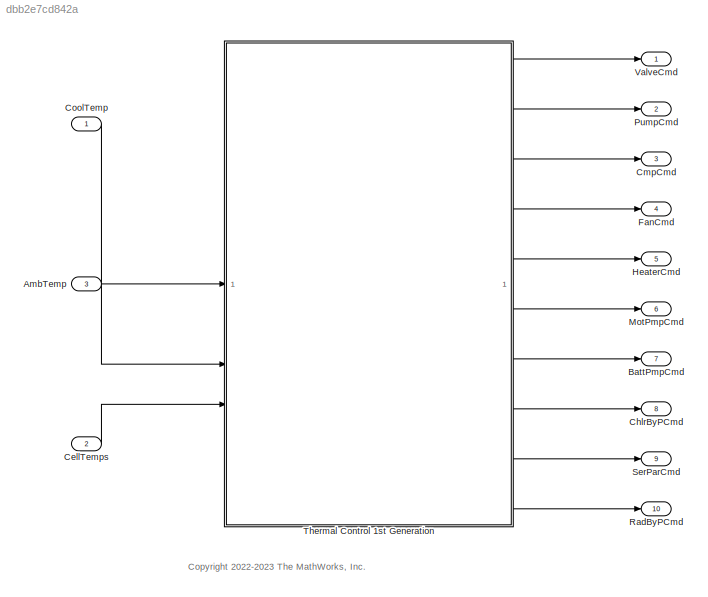
MODEL slx_dbb2e7cd842a
KIND model
CONFIG AbsTol = auto
CONFIG EnableMultiTasking = off
CONFIG FixedStep = 0.1
CONFIG MaxStep = auto
CONFIG MinStep = auto
CONFIG RelTol = 1e-3
CONFIG SampleTimeConstraint = Unconstrained
CONFIG SolverName = FixedStepDiscrete
CONFIG StartTime = 0.0
CONFIG StopTime = 10000
BLOCK [Inport] AmbTemp
  Port = 3
  Unit = K
BLOCK [Outport] BattPmpCmd
  Port = 7
BLOCK [Inport] CellTemps
  Port = 2
  PortDimensions = PlntBattNumCellSer
BLOCK [Outport] ChlrByPCmd
  Port = 8
BLOCK [Outport] CmpCmd
  Port = 3
BLOCK [Inport] CoolTemp
  Unit = K
BLOCK [Outport] FanCmd
  Port = 4
BLOCK [Outport] HeaterCmd
  Port = 5
BLOCK [Outport] MotPmpCmd
  Port = 6
BLOCK [Outport] PumpCmd
  Port = 2
BLOCK [Outport] RadByPCmd
  Port = 10
BLOCK [Outport] SerParCmd
  Port = 9
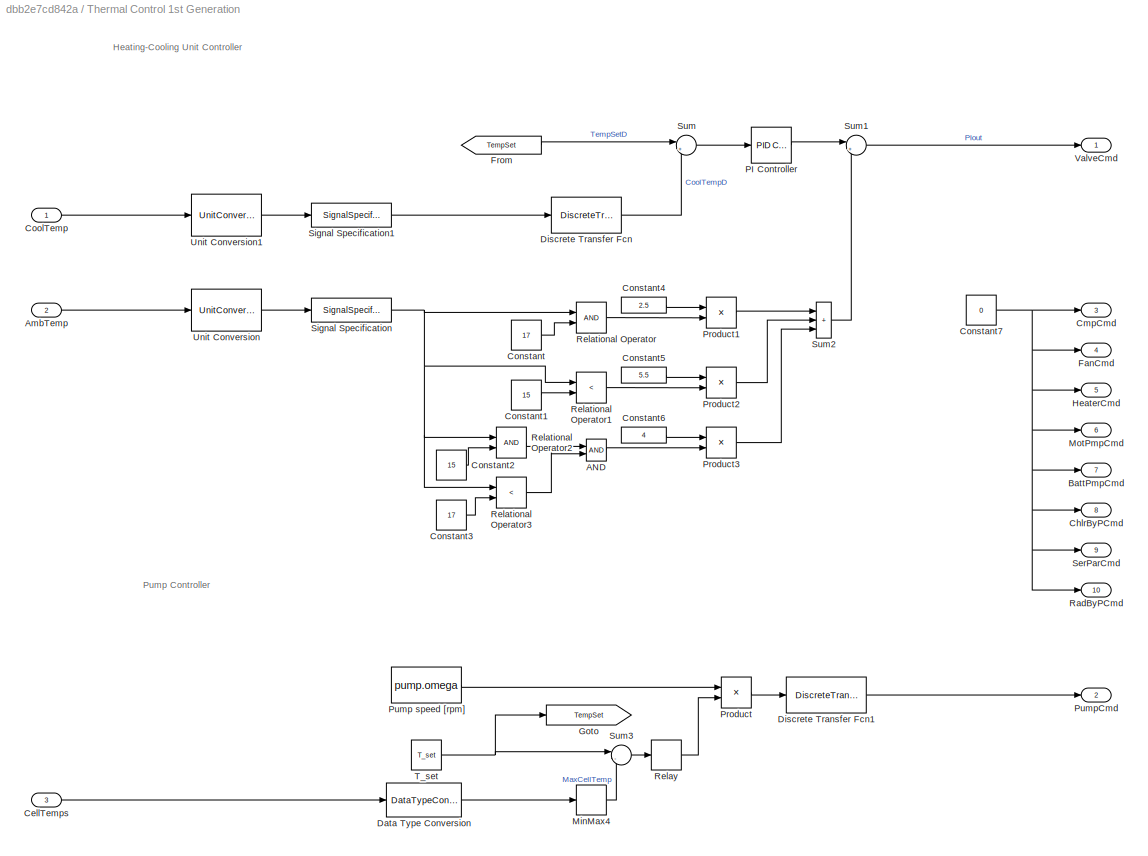
BLOCK [SubSystem] Thermal Control 1st Generation
  VariantControl = Thermal Control 1st Gen
BLOCK [Logic] Thermal Control 1st Generation/AND
  AllPortsSameDT = off
  IconShape = distinctive
  OutDataTypeStr = boolean
BLOCK [Inport] Thermal Control 1st Generation/AmbTemp
  Port = 2
BLOCK [Outport] Thermal Control 1st Generation/BattPmpCmd
  Port = 7
BLOCK [Inport] Thermal Control 1st Generation/CellTemps
  Port = 3
BLOCK [Outport] Thermal Control 1st Generation/ChlrByPCmd
  Port = 8
BLOCK [Outport] Thermal Control 1st Generation/CmpCmd
  Port = 3
BLOCK [Constant] Thermal Control 1st Generation/Constant
  SampleTime = -1
  Value = 17
BLOCK [Constant] Thermal Control 1st Generation/Constant1
  SampleTime = -1
  Value = 15
BLOCK [Constant] Thermal Control 1st Generation/Constant2
  SampleTime = -1
  Value = 15
BLOCK [Constant] Thermal Control 1st Generation/Constant3
  SampleTime = -1
  Value = 17
BLOCK [Constant] Thermal Control 1st Generation/Constant4
  SampleTime = -1
  Value = 2.5
BLOCK [Constant] Thermal Control 1st Generation/Constant5
  SampleTime = -1
  Value = 5.5
BLOCK [Constant] Thermal Control 1st Generation/Constant6
  SampleTime = -1
  Value = 4
BLOCK [Constant] Thermal Control 1st Generation/Constant7
  SampleTime = 0.1
  Value = 0
BLOCK [Inport] Thermal Control 1st Generation/CoolTemp
BLOCK [DataTypeConversion] Thermal Control 1st Generation/Data Type Conversion
  OutDataTypeStr = single
  RndMeth = Floor
  SaturateOnIntegerOverflow = off
BLOCK [DiscreteTransferFcn] Thermal Control 1st Generation/Discrete Transfer Fcn
  Denominator = [1 -0.9048]
  InitialStates = T_set
  InputPortMap = u0
  Numerator = [0.09516]
BLOCK [DiscreteTransferFcn] Thermal Control 1st Generation/Discrete Transfer Fcn1
  Denominator = [1 -0.9512]
  InputPortMap = u0
  Numerator = [0.04877]
BLOCK [Outport] Thermal Control 1st Generation/FanCmd
  Port = 4
BLOCK [From] Thermal Control 1st Generation/From
  GotoTag = TempSet
BLOCK [Goto] Thermal Control 1st Generation/Goto
  GotoTag = TempSet
BLOCK [Outport] Thermal Control 1st Generation/HeaterCmd
  Port = 5
BLOCK [MinMax] Thermal Control 1st Generation/MinMax4
  Function = max
BLOCK [Outport] Thermal Control 1st Generation/MotPmpCmd
  Port = 6
BLOCK [Reference] Thermal Control 1st Generation/PI Controller  REF=slpidlib/PID Controller
  LibrarySourceBlock = simulink/Discrete/Discrete PID Controller
  SourceBlock = slpidlib/PID Controller
  SourceType = PID 1dof
BLOCK [Product] Thermal Control 1st Generation/Product
BLOCK [Product] Thermal Control 1st Generation/Product1
BLOCK [Product] Thermal Control 1st Generation/Product2
BLOCK [Product] Thermal Control 1st Generation/Product3
BLOCK [Constant] Thermal Control 1st Generation/Pump speed [rpm]
  SampleTime = -1
  Value = pump.omega
BLOCK [Outport] Thermal Control 1st Generation/PumpCmd
  Port = 2
BLOCK [Outport] Thermal Control 1st Generation/RadByPCmd
  Port = 10
BLOCK [RelationalOperator] Thermal Control 1st Generation/Relational Operator
  InputSameDT = off
  OutDataTypeStr = boolean
  RndMeth = Simplest
BLOCK [RelationalOperator] Thermal Control 1st Generation/Relational Operator1
  InputSameDT = off
  Operator = <
  OutDataTypeStr = boolean
  RndMeth = Simplest
BLOCK [RelationalOperator] Thermal Control 1st Generation/Relational Operator2
  InputSameDT = off
  OutDataTypeStr = boolean
  RndMeth = Simplest
BLOCK [RelationalOperator] Thermal Control 1st Generation/Relational Operator3
  InputSameDT = off
  Operator = <
  OutDataTypeStr = boolean
  RndMeth = Simplest
BLOCK [Relay] Thermal Control 1st Generation/Relay
  OffSwitchValue = 0.1
  OnSwitchValue = +1
BLOCK [Outport] Thermal Control 1st Generation/SerParCmd
  Port = 9
BLOCK [SignalSpecification] Thermal Control 1st Generation/Signal Specification
  Unit = °C
BLOCK [SignalSpecification] Thermal Control 1st Generation/Signal Specification1
  Unit = °C
BLOCK [Sum] Thermal Control 1st Generation/Sum
  Inputs = |+-
BLOCK [Sum] Thermal Control 1st Generation/Sum1
  Inputs = |++
BLOCK [Sum] Thermal Control 1st Generation/Sum2
  IconShape = rectangular
  Inputs = |+++
BLOCK [Sum] Thermal Control 1st Generation/Sum3
  Inputs = |-+
BLOCK [Constant] Thermal Control 1st Generation/T_set
  SampleTime = -1
  Value = T_set
BLOCK [UnitConversion] Thermal Control 1st Generation/Unit Conversion
BLOCK [UnitConversion] Thermal Control 1st Generation/Unit Conversion1
BLOCK [Outport] Thermal Control 1st Generation/ValveCmd
BLOCK [Outport] ValveCmd
ANNOTATION (root): <copyright redacted>
ANNOTATION Thermal Control 1st Generation: Heating-Cooling Unit Controller
ANNOTATION Thermal Control 1st Generation: Pump Controller
LINE AmbTemp:1 -> Thermal Control 1st Generation:2
LINE CellTemps:1 -> Thermal Control 1st Generation:3
LINE CoolTemp:1 -> Thermal Control 1st Generation:1
LINE Thermal Control 1st Generation/AND:1 -> Thermal Control 1st Generation/Product3:2
LINE Thermal Control 1st Generation/AmbTemp:1 -> Thermal Control 1st Generation/Unit Conversion:1
LINE Thermal Control 1st Generation/CellTemps:1 -> Thermal Control 1st Generation/Data Type Conversion:1
LINE Thermal Control 1st Generation/Constant1:1 -> Thermal Control 1st Generation/Relational Operator1:2
LINE Thermal Control 1st Generation/Constant2:1 -> Thermal Control 1st Generation/Relational Operator2:2
LINE Thermal Control 1st Generation/Constant3:1 -> Thermal Control 1st Generation/Relational Operator3:2
LINE Thermal Control 1st Generation/Constant4:1 -> Thermal Control 1st Generation/Product1:1
LINE Thermal Control 1st Generation/Constant5:1 -> Thermal Control 1st Generation/Product2:1
LINE Thermal Control 1st Generation/Constant6:1 -> Thermal Control 1st Generation/Product3:1
NET Thermal Control 1st Generation/Constant7:1 -> Thermal Control 1st Generation/BattPmpCmd:1, Thermal Control 1st Generation/ChlrByPCmd:1, Thermal Control 1st Generation/CmpCmd:1, Thermal Control 1st Generation/FanCmd:1, Thermal Control 1st Generation/HeaterCmd:1, Thermal Control 1st Generation/MotPmpCmd:1, Thermal Control 1st Generation/RadByPCmd:1, Thermal Control 1st Generation/SerParCmd:1
LINE Thermal Control 1st Generation/Constant:1 -> Thermal Control 1st Generation/Relational Operator:2
LINE Thermal Control 1st Generation/CoolTemp:1 -> Thermal Control 1st Generation/Unit Conversion1:1
LINE Thermal Control 1st Generation/Data Type Conversion:1 -> Thermal Control 1st Generation/MinMax4:1
LINE Thermal Control 1st Generation/Discrete Transfer Fcn1:1 -> Thermal Control 1st Generation/PumpCmd:1
LINE Thermal Control 1st Generation/Discrete Transfer Fcn:1 -> Thermal Control 1st Generation/Sum:2
LINE Thermal Control 1st Generation/From:1 -> Thermal Control 1st Generation/Sum:1
LINE Thermal Control 1st Generation/MinMax4:1 -> Thermal Control 1st Generation/Sum3:2
LINE Thermal Control 1st Generation/PI Controller:1 -> Thermal Control 1st Generation/Sum1:1
LINE Thermal Control 1st Generation/Product1:1 -> Thermal Control 1st Generation/Sum2:1
LINE Thermal Control 1st Generation/Product2:1 -> Thermal Control 1st Generation/Sum2:2
LINE Thermal Control 1st Generation/Product3:1 -> Thermal Control 1st Generation/Sum2:3
LINE Thermal Control 1st Generation/Product:1 -> Thermal Control 1st Generation/Discrete Transfer Fcn1:1
LINE Thermal Control 1st Generation/Pump speed [rpm]:1 -> Thermal Control 1st Generation/Product:1
LINE Thermal Control 1st Generation/Relational Operator1:1 -> Thermal Control 1st Generation/Product2:2
LINE Thermal Control 1st Generation/Relational Operator2:1 -> Thermal Control 1st Generation/AND:1
LINE Thermal Control 1st Generation/Relational Operator3:1 -> Thermal Control 1st Generation/AND:2
LINE Thermal Control 1st Generation/Relational Operator:1 -> Thermal Control 1st Generation/Product1:2
LINE Thermal Control 1st Generation/Relay:1 -> Thermal Control 1st Generation/Product:2
LINE Thermal Control 1st Generation/Signal Specification1:1 -> Thermal Control 1st Generation/Discrete Transfer Fcn:1
NET Thermal Control 1st Generation/Signal Specification:1 -> Thermal Control 1st Generation/Relational Operator1:1, Thermal Control 1st Generation/Relational Operator2:1, Thermal Control 1st Generation/Relational Operator3:1, Thermal Control 1st Generation/Relational Operator:1
LINE Thermal Control 1st Generation/Sum1:1 -> Thermal Control 1st Generation/ValveCmd:1
LINE Thermal Control 1st Generation/Sum2:1 -> Thermal Control 1st Generation/Sum1:2
LINE Thermal Control 1st Generation/Sum3:1 -> Thermal Control 1st Generation/Relay:1
LINE Thermal Control 1st Generation/Sum:1 -> Thermal Control 1st Generation/PI Controller:1
NET Thermal Control 1st Generation/T_set:1 -> Thermal Control 1st Generation/Goto:1, Thermal Control 1st Generation/Sum3:1
LINE Thermal Control 1st Generation/Unit Conversion1:1 -> Thermal Control 1st Generation/Signal Specification1:1
LINE Thermal Control 1st Generation/Unit Conversion:1 -> Thermal Control 1st Generation/Signal Specification:1
LINE Thermal Control 1st Generation:1 -> ValveCmd:1
LINE Thermal Control 1st Generation:10 -> RadByPCmd:1
LINE Thermal Control 1st Generation:2 -> PumpCmd:1
LINE Thermal Control 1st Generation:3 -> CmpCmd:1
LINE Thermal Control 1st Generation:4 -> FanCmd:1
LINE Thermal Control 1st Generation:5 -> HeaterCmd:1
LINE Thermal Control 1st Generation:6 -> MotPmpCmd:1
LINE Thermal Control 1st Generation:7 -> BattPmpCmd:1
LINE Thermal Control 1st Generation:8 -> ChlrByPCmd:1
LINE Thermal Control 1st Generation:9 -> SerParCmd:1
note: NET lines group one-source signal fan-out (src -> all destinations, sorted); 1:1 wires keep LINE
